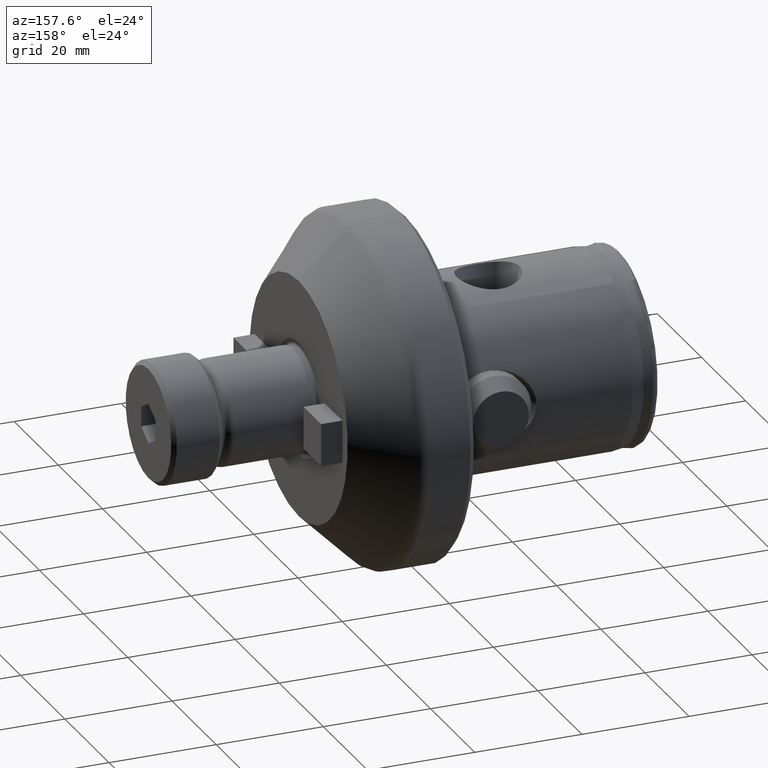
[diagram: clean part render]
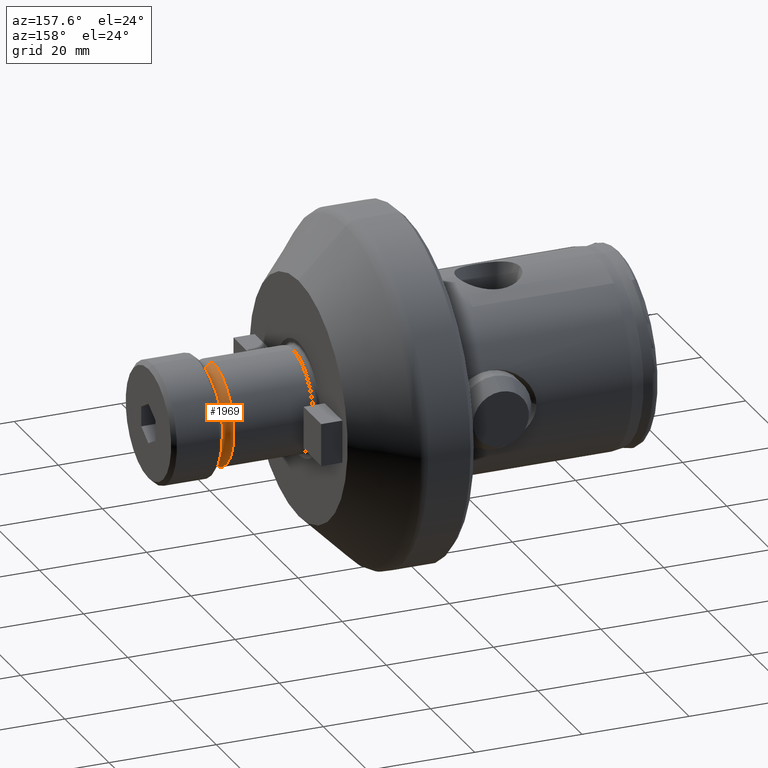
[diagram: same view with one face highlighted and labeled with its STEP entity id]
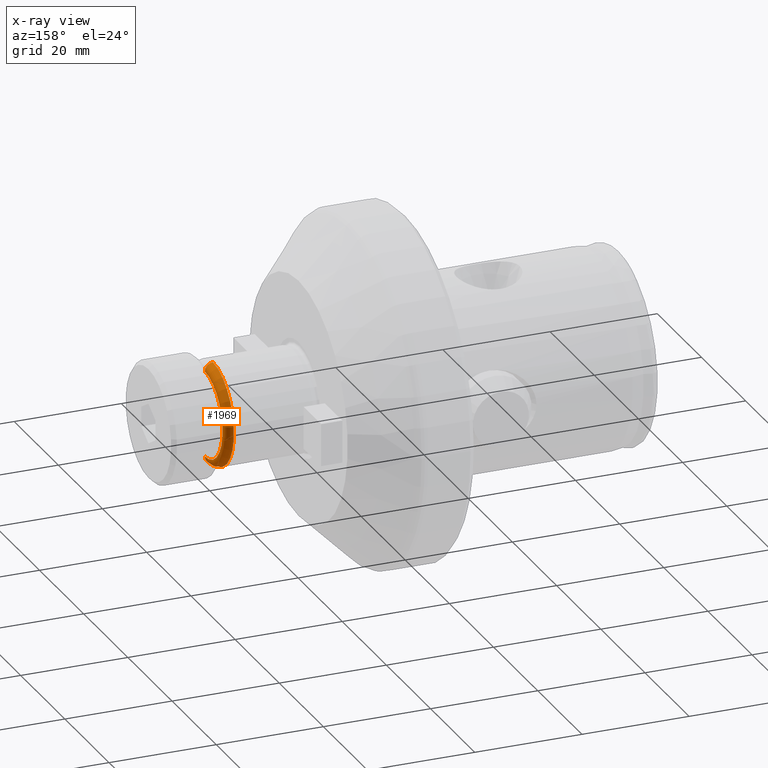
[diagram: x-ray of the same camera — body ghosted, the highlighted face saturated]
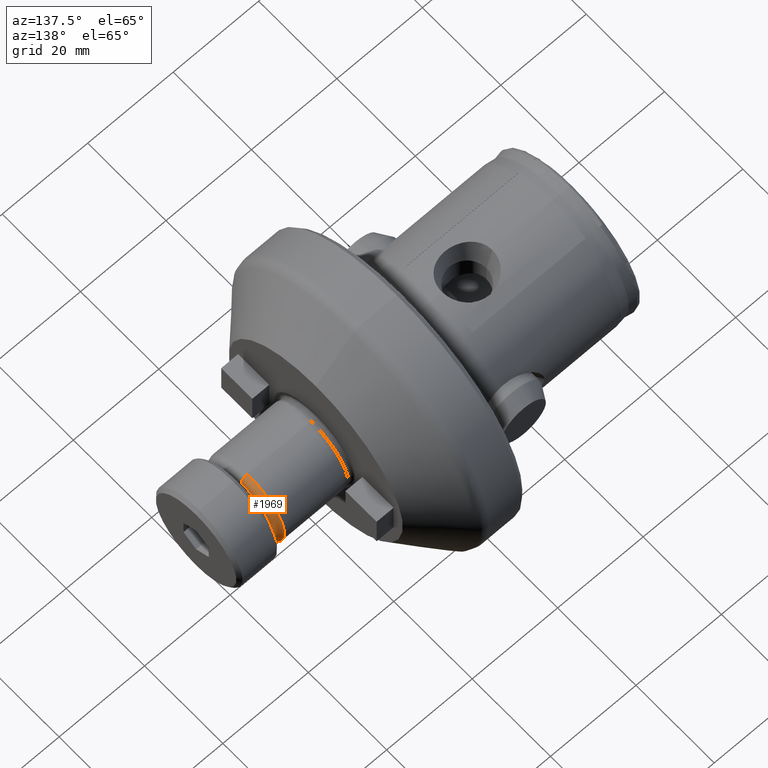
[diagram: same view with one face highlighted and labeled with its STEP entity id]
A machine part, auxiliary view. The second image highlights one B-rep face of the part: STEP entity #1969.
The next image is the same camera in x-ray: the body ghosted, the highlighted face saturated — about 0% of this face is hidden behind the body in this view.
A second angle (auxiliary view) of the same face is appended — the face is thin or edge-on in the first view.
In plain terms, the highlighted toroidal blend (fillet) surface has major radius 8.02 mm and minor (blend) radius 1.5 mm.
Its self-contained STEP definition (entity closure, byte-faithful):
#66 = AXIS2_PLACEMENT_3D ( 'NONE', #1010, #5261, #4603 ) ;
#67 = CARTESIAN_POINT ( 'NONE',  ( 75.90000000000002000, 0.0000000000000000000, -9.519999999999999600 ) ) ;
#146 = VERTEX_POINT ( 'NONE', #4160 ) ;
#445 = ORIENTED_EDGE ( 'NONE', *, *, #6399, .F. ) ;
#743 = EDGE_CURVE ( 'NONE', #5086, #6960, #2466, .T. ) ;
#919 = EDGE_CURVE ( 'NONE', #146, #6960, #2379, .T. ) ;
#1010 = CARTESIAN_POINT ( 'NONE',  ( 75.90000000000002000, 0.0000000000000000000, 0.0000000000000000000 ) ) ;
#1076 = ORIENTED_EDGE ( 'NONE', *, *, #6963, .F. ) ;
#1468 = DIRECTION ( 'NONE',  ( 0.0000000000000000000, 1.224646799147353500E-016, 1.000000000000000000 ) ) ;
#1527 = CIRCLE ( 'NONE', #1884, 9.519999999999999600 ) ;
#1657 = CARTESIAN_POINT ( 'NONE',  ( 77.40000000000002000, 0.0000000000000000000, 0.0000000000000000000 ) ) ;
#1663 = CARTESIAN_POINT ( 'NONE',  ( 75.90000000000002000, 0.0000000000000000000, 0.0000000000000000000 ) ) ;
#1818 = VERTEX_POINT ( 'NONE', #67 ) ;
#1884 = AXIS2_PLACEMENT_3D ( 'NONE', #1663, #5851, #2265 ) ;
#1921 = CARTESIAN_POINT ( 'NONE',  ( 75.90000000000002000, 0.0000000000000000000, -8.019999999999999600 ) ) ;
#1969 = ADVANCED_FACE ( 'NONE', ( #3162 ), #6507, .T. ) ;
#2265 = DIRECTION ( 'NONE',  ( 0.0000000000000000000, 0.0000000000000000000, -1.000000000000000000 ) ) ;
#2379 = CIRCLE ( 'NONE', #2941, 8.019999999999999600 ) ;
#2384 = EDGE_LOOP ( 'NONE', ( #1076, #3217, #3258, #445 ) ) ;
#2466 = CIRCLE ( 'NONE', #7537, 1.499999999999999600 ) ;
#2821 = CARTESIAN_POINT ( 'NONE',  ( 77.40000000000002000, 1.074015242852228700E-015, 8.019999999999999600 ) ) ;
#2941 = AXIS2_PLACEMENT_3D ( 'NONE', #1657, #4641, #6411 ) ;
#2966 = CARTESIAN_POINT ( 'NONE',  ( 75.90000000000002000, 1.165863752788280200E-015, 9.519999999999999600 ) ) ;
#3133 = CIRCLE ( 'NONE', #6375, 1.499999999999999600 ) ;
#3134 = DIRECTION ( 'NONE',  ( 0.0000000000000000000, 0.0000000000000000000, -1.000000000000000000 ) ) ;
#3162 = FACE_OUTER_BOUND ( 'NONE', #2384, .T. ) ;
#3217 = ORIENTED_EDGE ( 'NONE', *, *, #743, .T. ) ;
#3258 = ORIENTED_EDGE ( 'NONE', *, *, #919, .F. ) ;
#3871 = DIRECTION ( 'NONE',  ( 0.0000000000000000000, 1.000000000000000000, -1.224646799147353200E-016 ) ) ;
#4160 = CARTESIAN_POINT ( 'NONE',  ( 77.40000000000002000, 0.0000000000000000000, -8.019999999999999600 ) ) ;
#4603 = DIRECTION ( 'NONE',  ( 0.0000000000000000000, 0.0000000000000000000, -1.000000000000000000 ) ) ;
#4641 = DIRECTION ( 'NONE',  ( 1.000000000000000000, 0.0000000000000000000, 0.0000000000000000000 ) ) ;
#5086 = VERTEX_POINT ( 'NONE', #2966 ) ;
#5261 = DIRECTION ( 'NONE',  ( 1.000000000000000000, 0.0000000000000000000, 0.0000000000000000000 ) ) ;
#5851 = DIRECTION ( 'NONE',  ( -1.000000000000000000, -0.0000000000000000000, -0.0000000000000000000 ) ) ;
#6097 = DIRECTION ( 'NONE',  ( 0.0000000000000000000, -1.000000000000000000, 0.0000000000000000000 ) ) ;
#6159 = CARTESIAN_POINT ( 'NONE',  ( 75.90000000000002000, 9.821667329161771200E-016, 8.019999999999999600 ) ) ;
#6375 = AXIS2_PLACEMENT_3D ( 'NONE', #1921, #6097, #3134 ) ;
#6399 = EDGE_CURVE ( 'NONE', #1818, #146, #3133, .T. ) ;
#6411 = DIRECTION ( 'NONE',  ( 0.0000000000000000000, 0.0000000000000000000, -1.000000000000000000 ) ) ;
#6507 = TOROIDAL_SURFACE ( 'NONE', #66, 8.019999999999999600, 1.500000000000000000 ) ;
#6960 = VERTEX_POINT ( 'NONE', #2821 ) ;
#6963 = EDGE_CURVE ( 'NONE', #5086, #1818, #1527, .T. ) ;
#7537 = AXIS2_PLACEMENT_3D ( 'NONE', #6159, #3871, #1468 ) ;